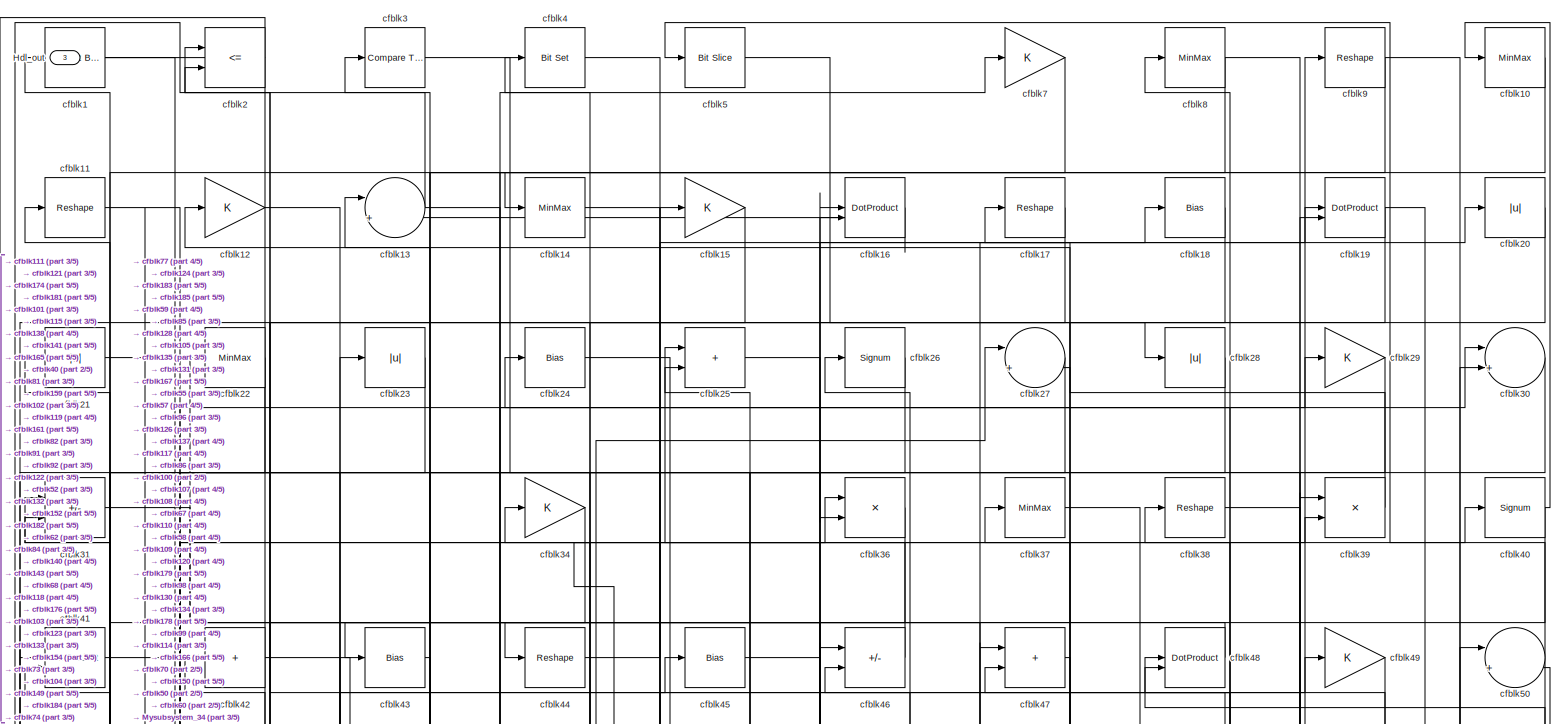
[diagram: root canvas - part 1/5, full width, top band]
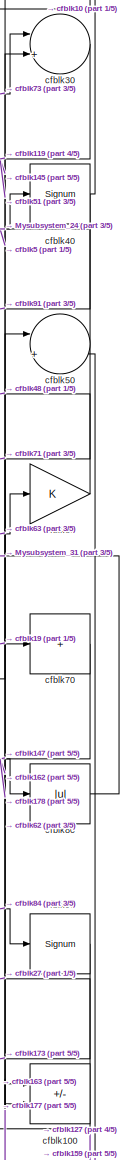
[diagram: root canvas - part 2/5, top right region]
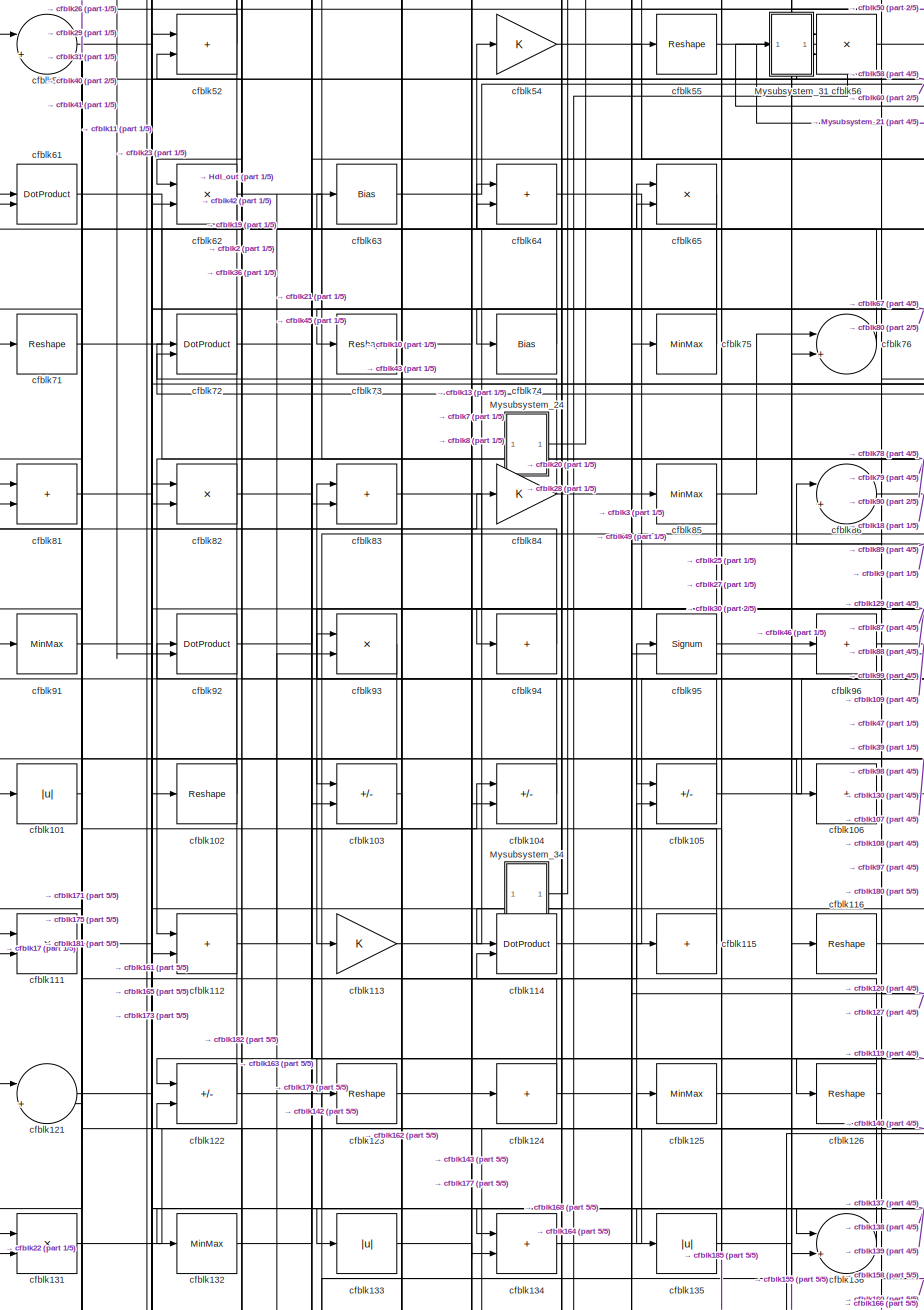
[diagram: root canvas - part 3/5, middle left region]
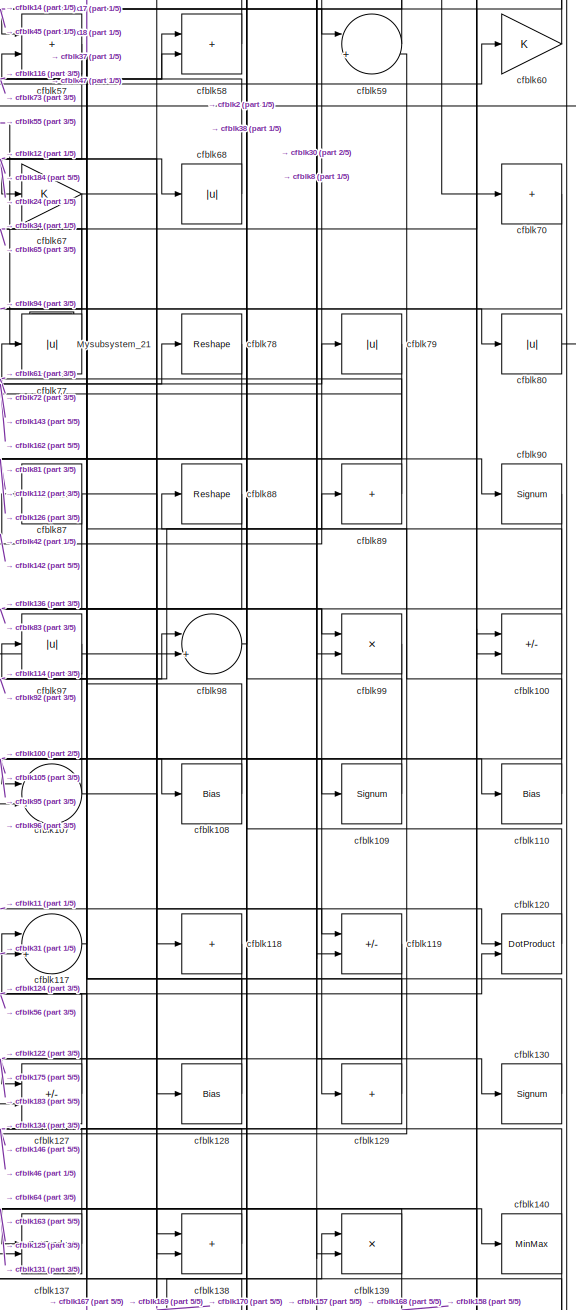
[diagram: root canvas - part 4/5, middle right region]
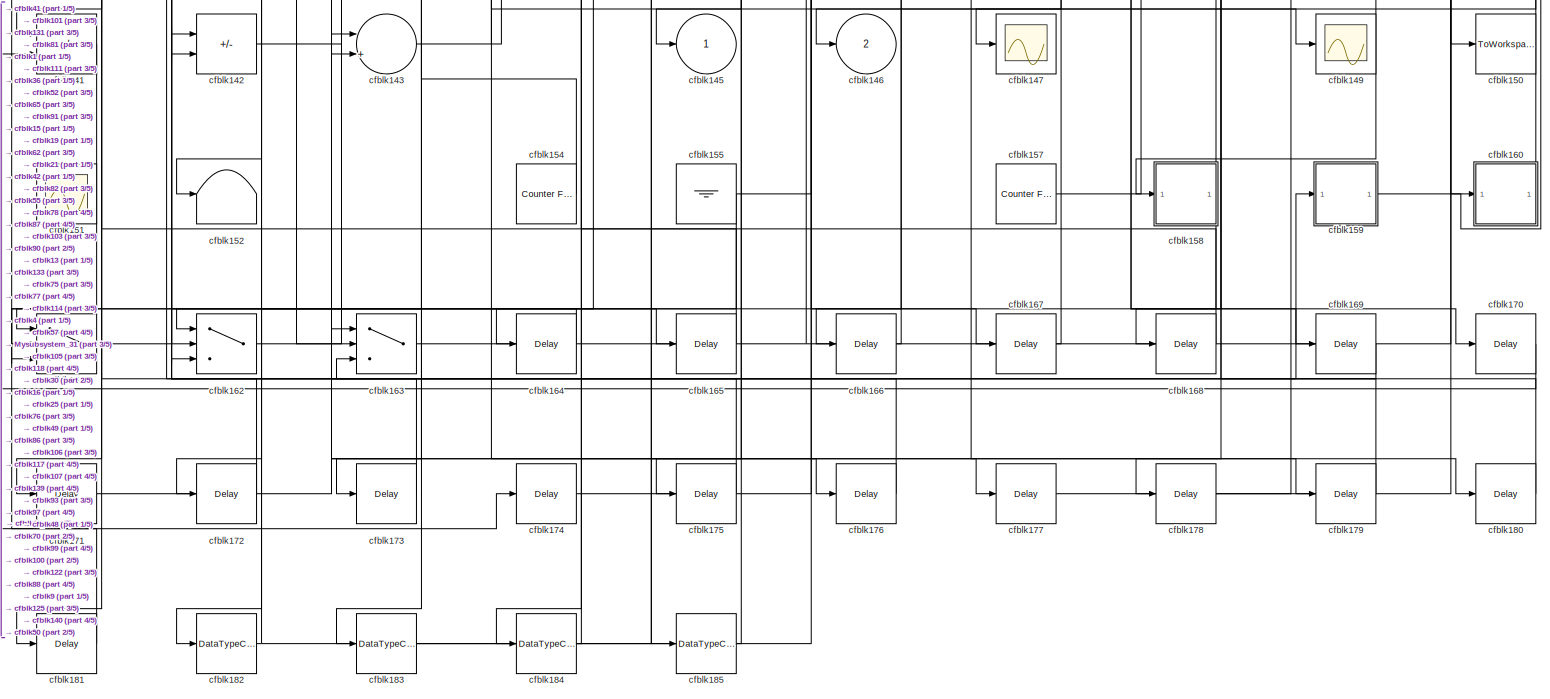
[diagram: root canvas - part 5/5, full width, bottom band]
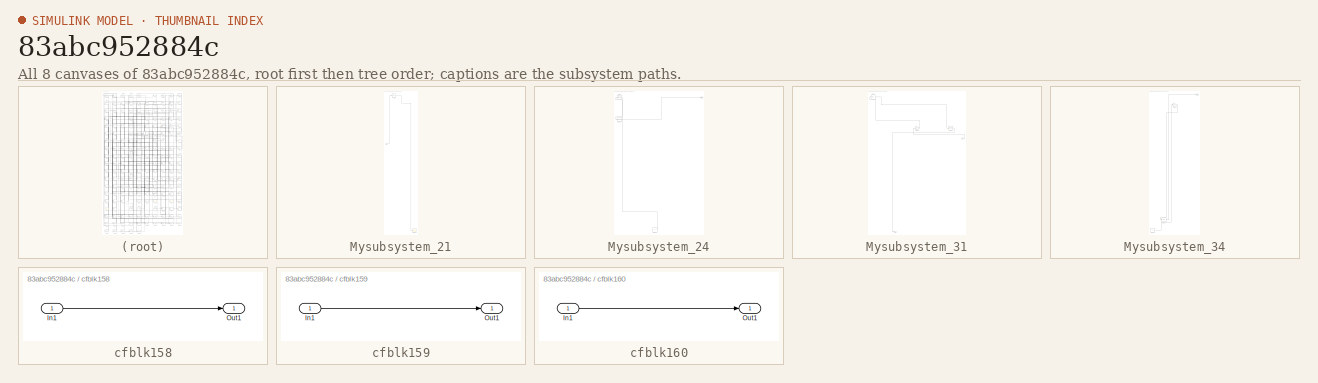
[diagram: thumbnail index - all 8 canvases of the model, root first then tree order]
MODEL slx_83abc952884c
KIND model
CONFIG AbsTol = auto
CONFIG EnableMultiTasking = off
CONFIG FixedStep = auto
CONFIG MaxStep = auto
CONFIG MinStep = auto
CONFIG RelTol = 1e-3
CONFIG SampleTimeConstraint = Unconstrained
CONFIG SolverName = VariableStepAuto
CONFIG StartTime = 0.0
CONFIG StopTime = 10.0
BLOCK [Outport] Hdl_out
  OutDataTypeStr = uint8
  Port = 3
BLOCK [SubSystem] Mysubsystem_21
  RTWFcnName = Mysubsystem_21
  RTWFcnNameOpts = User specified
  RTWFileNameOpts = Use function name
  RTWSystemCode = Reusable function
  TreatAsAtomicUnit = on
BLOCK [Inport] Mysubsystem_21/In1
BLOCK [Scope] Mysubsystem_21/cfblk148
  Floating = off
  NumInputPorts = 1
  ScopeSpecificationString = Simulink.scopes.TimeScopeBlockCfg('CurrentConfiguration', extmgr.ConfigurationSet(extmgr.Configuration('Core','General UI',true),extmgr.Configuration('Core','Source UI',true),extmgr.Configuration('Sources','WiredSimulink',true,'DataLoggingVariableName','ScopeData2','DataLoggingSaveFormat','Array','DataLoggingLimitDataPoints',true,'DataLoggingDecimation','1'),extmgr.Configuration('Visuals','Time Do...<+868ch>  <repeated x3 — deduplicated; at blocks: cfblk148, cfblk147, cfblk149>
BLOCK [Abs] Mysubsystem_21/cfblk6
  SaturateOnIntegerOverflow = off
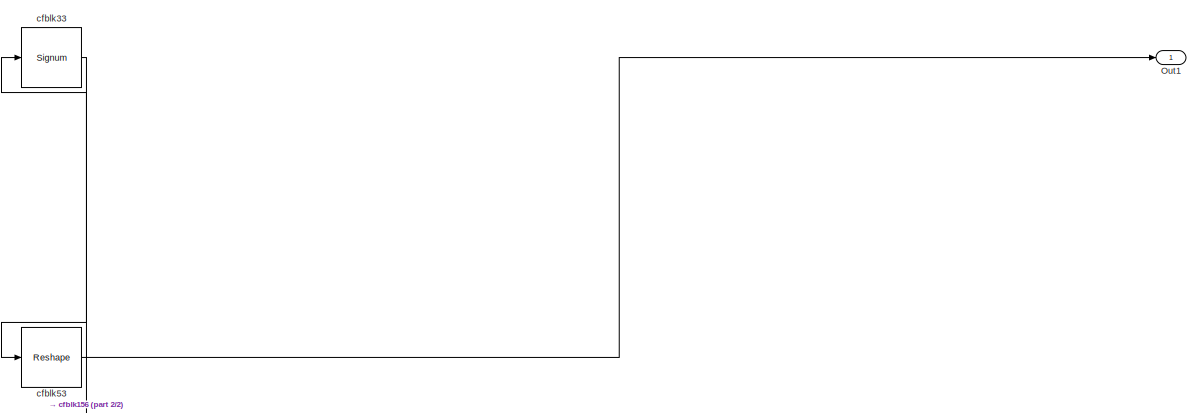
[diagram: Mysubsystem_24 - part 1/2, full width, top band]
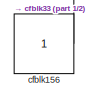
[diagram: Mysubsystem_24 - part 2/2, bottom center region]
BLOCK [SubSystem] Mysubsystem_24
  RTWFcnName = Mysubsystem_24
  RTWFcnNameOpts = User specified
  RTWFileNameOpts = Use function name
  RTWSystemCode = Reusable function
  TreatAsAtomicUnit = on
BLOCK [Outport] Mysubsystem_24/Out1
BLOCK [Constant] Mysubsystem_24/cfblk156
  SampleTime = -1
BLOCK [Signum] Mysubsystem_24/cfblk33
BLOCK [Reshape] Mysubsystem_24/cfblk53
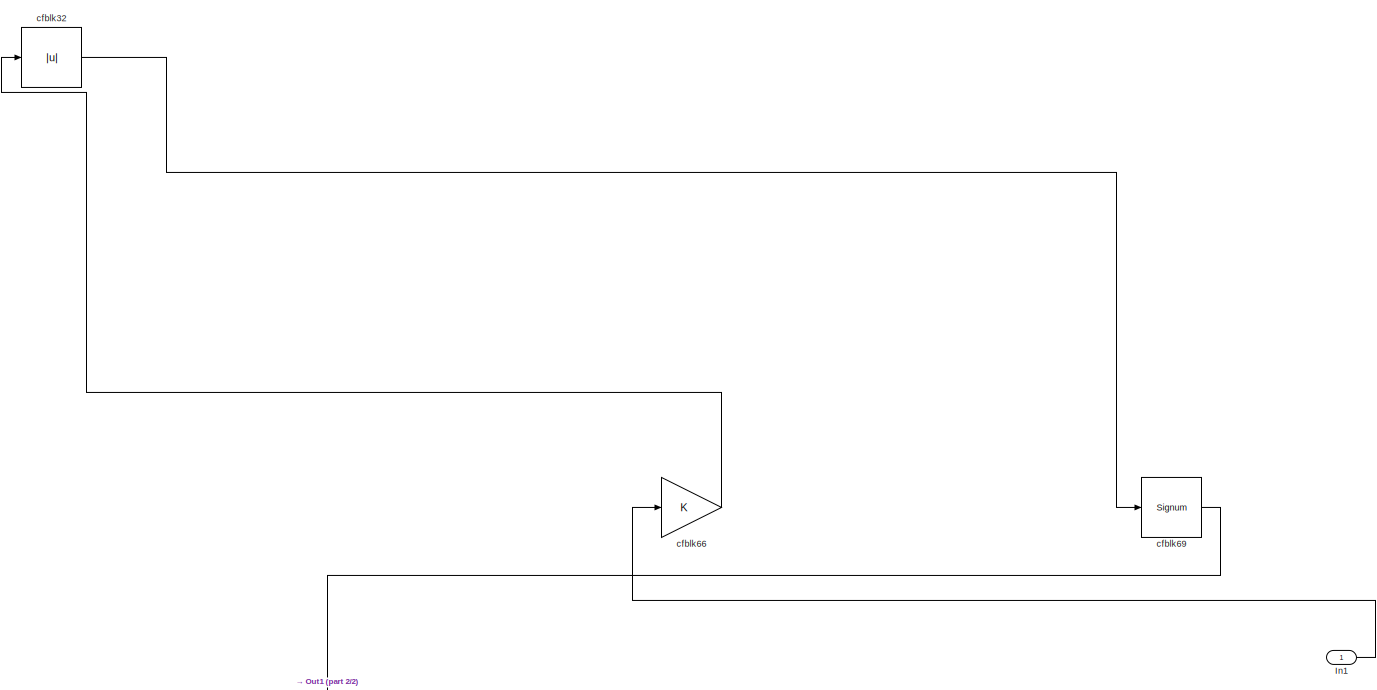
[diagram: Mysubsystem_31 - part 1/2, full width, top band]
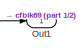
[diagram: Mysubsystem_31 - part 2/2, bottom left region]
BLOCK [SubSystem] Mysubsystem_31
  RTWFcnName = Mysubsystem_31
  RTWFcnNameOpts = User specified
  RTWFileNameOpts = Use function name
  RTWSystemCode = Reusable function
  TreatAsAtomicUnit = on
BLOCK [Inport] Mysubsystem_31/In1
BLOCK [Outport] Mysubsystem_31/Out1
BLOCK [Abs] Mysubsystem_31/cfblk32
  SaturateOnIntegerOverflow = off
BLOCK [Gain] Mysubsystem_31/cfblk66
BLOCK [Signum] Mysubsystem_31/cfblk69
BLOCK [SubSystem] Mysubsystem_34
  RTWFcnName = Mysubsystem_34
  RTWFcnNameOpts = User specified
  RTWFileNameOpts = Use function name
  RTWSystemCode = Reusable function
  TreatAsAtomicUnit = on
BLOCK [Outport] Mysubsystem_34/Out1
BLOCK [Bias] Mysubsystem_34/cfblk144
  Bias = 0.0
  SaturateOnIntegerOverflow = off
BLOCK [Constant] Mysubsystem_34/cfblk153
  SampleTime = -1
BLOCK [Gain] Mysubsystem_34/cfblk35
BLOCK [Reference] cfblk1  REF=simulink/Logic and Bit
Operations/Extract Bits
  LibrarySourceBlock = hdlsllib/Logic and Bit\nOperations/Extract Bits
  SourceBlock = simulink/Logic and Bit\nOperations/Extract Bits
  SourceType = Extract Bits
BLOCK [MinMax] cfblk10
  OutDataTypeStr = uint8
BLOCK [Sum] cfblk100
  IconShape = rectangular
  Inputs = +-
  OutDataTypeStr = uint8
BLOCK [Abs] cfblk101
  OutDataTypeStr = uint8
  SaturateOnIntegerOverflow = off
BLOCK [Reshape] cfblk102
BLOCK [Sum] cfblk103
  IconShape = rectangular
  Inputs = +-
  OutDataTypeStr = uint8
BLOCK [Sum] cfblk104
  IconShape = rectangular
  Inputs = +-
  OutDataTypeStr = uint8
BLOCK [Sum] cfblk105
  IconShape = rectangular
  Inputs = +-
  OutDataTypeStr = uint8
BLOCK [Sum] cfblk106
  IconShape = rectangular
  Inputs = +
  OutDataTypeStr = uint8
BLOCK [Sum] cfblk107
  Inputs = |++
  OutDataTypeStr = uint8
BLOCK [Bias] cfblk108
  Bias = 0.0
  SaturateOnIntegerOverflow = off
BLOCK [Signum] cfblk109
BLOCK [Reshape] cfblk11
BLOCK [Bias] cfblk110
  Bias = 0.0
  SaturateOnIntegerOverflow = off
BLOCK [Product] cfblk111
  Inputs = */
  OutDataTypeStr = uint8
  RndMeth = Zero
  SaturateOnIntegerOverflow = on
BLOCK [Sum] cfblk112
  IconShape = rectangular
  OutDataTypeStr = uint8
BLOCK [Gain] cfblk113
  OutDataTypeStr = uint8
BLOCK [DotProduct] cfblk114
  OutDataTypeStr = uint8
BLOCK [Sum] cfblk115
  IconShape = rectangular
  Inputs = +
  OutDataTypeStr = uint8
BLOCK [Reshape] cfblk116
BLOCK [Sum] cfblk117
  Inputs = |++
  OutDataTypeStr = uint8
BLOCK [Sum] cfblk118
  IconShape = rectangular
  Inputs = +
  OutDataTypeStr = uint8
BLOCK [Sum] cfblk119
  IconShape = rectangular
  Inputs = +-
  OutDataTypeStr = uint8
BLOCK [Gain] cfblk12
  OutDataTypeStr = uint8
BLOCK [DotProduct] cfblk120
  OutDataTypeStr = uint8
BLOCK [Sum] cfblk121
  Inputs = |++
  OutDataTypeStr = uint8
BLOCK [Sum] cfblk122
  IconShape = rectangular
  Inputs = +-
  OutDataTypeStr = uint8
BLOCK [Reshape] cfblk123
BLOCK [Sum] cfblk124
  IconShape = rectangular
  Inputs = +
  OutDataTypeStr = uint8
BLOCK [MinMax] cfblk125
  OutDataTypeStr = uint8
BLOCK [Reshape] cfblk126
BLOCK [Sum] cfblk127
  IconShape = rectangular
  Inputs = +-
  OutDataTypeStr = uint8
BLOCK [Bias] cfblk128
  Bias = 0.0
  SaturateOnIntegerOverflow = off
BLOCK [Sum] cfblk129
  IconShape = rectangular
  Inputs = +
  OutDataTypeStr = uint8
BLOCK [Sum] cfblk13
  Inputs = |++
  OutDataTypeStr = uint8
BLOCK [Signum] cfblk130
BLOCK [Product] cfblk131
  Inputs = */
  OutDataTypeStr = uint8
  RndMeth = Zero
  SaturateOnIntegerOverflow = on
BLOCK [MinMax] cfblk132
  OutDataTypeStr = uint8
BLOCK [Abs] cfblk133
  OutDataTypeStr = uint8
  SaturateOnIntegerOverflow = off
BLOCK [Sum] cfblk134
  IconShape = rectangular
  OutDataTypeStr = uint8
BLOCK [Abs] cfblk135
  OutDataTypeStr = uint8
  SaturateOnIntegerOverflow = off
BLOCK [Sum] cfblk136
  Inputs = |++
  OutDataTypeStr = uint8
BLOCK [DotProduct] cfblk137
  OutDataTypeStr = uint8
BLOCK [Sum] cfblk138
  IconShape = rectangular
  OutDataTypeStr = uint8
BLOCK [Product] cfblk139
  Inputs = */
  OutDataTypeStr = uint8
  RndMeth = Zero
  SaturateOnIntegerOverflow = on
BLOCK [MinMax] cfblk14
  OutDataTypeStr = uint8
BLOCK [MinMax] cfblk140
  OutDataTypeStr = uint8
BLOCK [Sum] cfblk141
  IconShape = rectangular
  Inputs = +-
  OutDataTypeStr = uint8
BLOCK [Sum] cfblk142
  IconShape = rectangular
  Inputs = +-
  OutDataTypeStr = uint8
BLOCK [Sum] cfblk143
  Inputs = |++
  OutDataTypeStr = uint8
BLOCK [Outport] cfblk145
  OutDataTypeStr = uint8
  VectorParamsAs1DForOutWhenUnconnected = off
BLOCK [Outport] cfblk146
  OutDataTypeStr = uint8
  Port = 2
  VectorParamsAs1DForOutWhenUnconnected = off
BLOCK [Scope] cfblk147
  Floating = off
  NumInputPorts = 1
BLOCK [Scope] cfblk149
  Floating = off
  NumInputPorts = 1
BLOCK [Gain] cfblk15
  OutDataTypeStr = uint8
BLOCK [ToWorkspace] cfblk150
  MaxDataPoints = inf
  SampleTime = -1
  SaveFormat = Timeseries
  VariableName = simout
BLOCK [Scope] cfblk151
  Floating = on
  NumInputPorts = 1
  ScopeSpecificationString = Simulink.scopes.TimeScopeBlockCfg('CurrentConfiguration', extmgr.ConfigurationSet(extmgr.Configuration('Core','General UI',true,'FigureColor',[0.156862745098039 0.156862745098039 0.156862745098039]),extmgr.Configuration('Core','Source UI',true),extmgr.Configuration('Sources','WiredSimulink',true,'DataLoggingVariableName','ScopeData1','DataLoggingSaveFormat','StructureWithTime','DataLoggingLimitDat...<+2713ch>
BLOCK [Terminator] cfblk152
BLOCK [Reference] cfblk154  REF=hdlsllib/Sources/Counter
Free-Running
  SourceBlock = hdlsllib/Sources/Counter\nFree-Running
  SourceType = Counter Free-Running
BLOCK [Ground] cfblk155
BLOCK [Reference] cfblk157  REF=hdlsllib/Sources/Counter
Free-Running
  SourceBlock = hdlsllib/Sources/Counter\nFree-Running
  SourceType = Counter Free-Running
BLOCK [SubSystem] cfblk158
  LibrarySourceBlock = hdlsllib/Ports &\nSubsystems/Subsystem
BLOCK [Inport] cfblk158/In1
BLOCK [Outport] cfblk158/Out1
BLOCK [SubSystem] cfblk159
  LibrarySourceBlock = hdlsllib/Ports &\nSubsystems/Subsystem
BLOCK [Inport] cfblk159/In1
BLOCK [Outport] cfblk159/Out1
BLOCK [DotProduct] cfblk16
  OutDataTypeStr = uint8
BLOCK [SubSystem] cfblk160
  LibrarySourceBlock = hdlsllib/Ports &\nSubsystems/Subsystem
BLOCK [Inport] cfblk160/In1
BLOCK [Outport] cfblk160/Out1
BLOCK [Switch] cfblk161
  InputSameDT = off
  OutDataTypeStr = uint8
  SaturateOnIntegerOverflow = off
BLOCK [Switch] cfblk162
  InputSameDT = off
  OutDataTypeStr = uint8
  SaturateOnIntegerOverflow = off
BLOCK [Switch] cfblk163
  InputSameDT = off
  OutDataTypeStr = uint8
  SaturateOnIntegerOverflow = off
BLOCK [Delay] cfblk164
  InputPortMap = u0
  SampleTime = 1
BLOCK [Delay] cfblk165
  InputPortMap = u0
  SampleTime = 1
BLOCK [Delay] cfblk166
  InputPortMap = u0
  SampleTime = 1
BLOCK [Delay] cfblk167
  InputPortMap = u0
  SampleTime = 1
BLOCK [Delay] cfblk168
  InputPortMap = u0
  SampleTime = 1
BLOCK [Delay] cfblk169
  InputPortMap = u0
  SampleTime = 1
BLOCK [Reshape] cfblk17
BLOCK [Delay] cfblk170
  InputPortMap = u0
  SampleTime = 1
BLOCK [Delay] cfblk171
  InputPortMap = u0
  SampleTime = 1
BLOCK [Delay] cfblk172
  InputPortMap = u0
  SampleTime = 1
BLOCK [Delay] cfblk173
  InputPortMap = u0
  SampleTime = 1
BLOCK [Delay] cfblk174
  InputPortMap = u0
  SampleTime = 1
BLOCK [Delay] cfblk175
  InputPortMap = u0
  SampleTime = 1
BLOCK [Delay] cfblk176
  InputPortMap = u0
  SampleTime = 1
BLOCK [Delay] cfblk177
  InputPortMap = u0
  SampleTime = 1
BLOCK [Delay] cfblk178
  InputPortMap = u0
  SampleTime = 1
BLOCK [Delay] cfblk179
  InputPortMap = u0
  SampleTime = 1
BLOCK [Bias] cfblk18
  Bias = 0.0
  SaturateOnIntegerOverflow = off
BLOCK [Delay] cfblk180
  InputPortMap = u0
  SampleTime = 1
BLOCK [Delay] cfblk181
  InputPortMap = u0
  SampleTime = 1
BLOCK [DataTypeConversion] cfblk182
  OutDataTypeStr = uint8
  RndMeth = Floor
  SaturateOnIntegerOverflow = off
BLOCK [DataTypeConversion] cfblk183
  OutDataTypeStr = uint8
  RndMeth = Floor
  SaturateOnIntegerOverflow = off
BLOCK [DataTypeConversion] cfblk184
  OutDataTypeStr = uint8
  RndMeth = Floor
  SaturateOnIntegerOverflow = off
BLOCK [DataTypeConversion] cfblk185
  OutDataTypeStr = uint8
  RndMeth = Floor
  SaturateOnIntegerOverflow = off
BLOCK [DotProduct] cfblk19
  OutDataTypeStr = uint8
BLOCK [RelationalOperator] cfblk2
  InputSameDT = off
  Operator = <=
  OutDataTypeStr = boolean
BLOCK [Abs] cfblk20
  OutDataTypeStr = uint8
  SaturateOnIntegerOverflow = off
BLOCK [Abs] cfblk21
  OutDataTypeStr = uint8
  SaturateOnIntegerOverflow = off
BLOCK [MinMax] cfblk22
  OutDataTypeStr = uint8
BLOCK [Abs] cfblk23
  OutDataTypeStr = uint8
  SaturateOnIntegerOverflow = off
BLOCK [Bias] cfblk24
  Bias = 0.0
  SaturateOnIntegerOverflow = off
BLOCK [Sum] cfblk25
  IconShape = rectangular
  OutDataTypeStr = uint8
BLOCK [Signum] cfblk26
BLOCK [Sum] cfblk27
  Inputs = |++
  OutDataTypeStr = uint8
BLOCK [Abs] cfblk28
  OutDataTypeStr = uint8
  SaturateOnIntegerOverflow = off
BLOCK [Gain] cfblk29
  OutDataTypeStr = uint8
BLOCK [Reference] cfblk3  REF=hdlsllib/Logic and Bit
Operations/Compare
To Zero
  SourceBlock = hdlsllib/Logic and Bit\nOperations/Compare\nTo Zero
  SourceType = Compare To Zero
BLOCK [Sum] cfblk30
  Inputs = |++
  OutDataTypeStr = uint8
BLOCK [Sum] cfblk31
  IconShape = rectangular
  Inputs = +-
  OutDataTypeStr = uint8
BLOCK [Gain] cfblk34
  OutDataTypeStr = uint8
BLOCK [Product] cfblk36
  Inputs = */
  OutDataTypeStr = uint8
  RndMeth = Zero
  SaturateOnIntegerOverflow = on
BLOCK [MinMax] cfblk37
  OutDataTypeStr = uint8
BLOCK [Reshape] cfblk38
BLOCK [Product] cfblk39
  Inputs = */
  OutDataTypeStr = uint8
  RndMeth = Zero
  SaturateOnIntegerOverflow = on
BLOCK [Reference] cfblk4  REF=simulink/Logic and Bit
Operations/Bit Set
  LibrarySourceBlock = hdlsllib/Logic and Bit\nOperations/Bit Set
  SourceBlock = simulink/Logic and Bit\nOperations/Bit Set
  SourceType = Bit Set
BLOCK [Signum] cfblk40
BLOCK [DotProduct] cfblk41
  OutDataTypeStr = uint8
BLOCK [Sum] cfblk42
  IconShape = rectangular
  Inputs = +
  OutDataTypeStr = uint8
BLOCK [Bias] cfblk43
  Bias = 0.0
  SaturateOnIntegerOverflow = off
BLOCK [Reshape] cfblk44
BLOCK [Bias] cfblk45
  Bias = 0.0
  SaturateOnIntegerOverflow = off
BLOCK [Sum] cfblk46
  IconShape = rectangular
  Inputs = +-
  OutDataTypeStr = uint8
BLOCK [Sum] cfblk47
  IconShape = rectangular
  OutDataTypeStr = uint8
BLOCK [DotProduct] cfblk48
  OutDataTypeStr = uint8
BLOCK [Gain] cfblk49
  OutDataTypeStr = uint8
BLOCK [Reference] cfblk5  REF=hdlsllib/Logic and Bit
Operations/Bit Slice
  SourceBlock = hdlsllib/Logic and Bit\nOperations/Bit Slice
  SourceType = Bit Slice
BLOCK [Sum] cfblk50
  Inputs = |++
  OutDataTypeStr = uint8
BLOCK [Sum] cfblk51
  Inputs = |++
  OutDataTypeStr = uint8
BLOCK [Sum] cfblk52
  IconShape = rectangular
  OutDataTypeStr = uint8
BLOCK [Gain] cfblk54
  OutDataTypeStr = uint8
BLOCK [Reshape] cfblk55
BLOCK [Product] cfblk56
  Inputs = */
  OutDataTypeStr = uint8
  RndMeth = Zero
  SaturateOnIntegerOverflow = on
BLOCK [Sum] cfblk57
  IconShape = rectangular
  OutDataTypeStr = uint8
BLOCK [Sum] cfblk58
  IconShape = rectangular
  OutDataTypeStr = uint8
BLOCK [Sum] cfblk59
  Inputs = |++
  OutDataTypeStr = uint8
BLOCK [Gain] cfblk60
  OutDataTypeStr = uint8
BLOCK [DotProduct] cfblk61
  OutDataTypeStr = uint8
BLOCK [Product] cfblk62
  Inputs = */
  OutDataTypeStr = uint8
  RndMeth = Zero
  SaturateOnIntegerOverflow = on
BLOCK [Bias] cfblk63
  Bias = 0.0
  SaturateOnIntegerOverflow = off
BLOCK [Sum] cfblk64
  IconShape = rectangular
  OutDataTypeStr = uint8
BLOCK [Product] cfblk65
  Inputs = */
  OutDataTypeStr = uint8
  RndMeth = Zero
  SaturateOnIntegerOverflow = on
BLOCK [Gain] cfblk67
  OutDataTypeStr = uint8
BLOCK [Abs] cfblk68
  OutDataTypeStr = uint8
  SaturateOnIntegerOverflow = off
BLOCK [Gain] cfblk7
  OutDataTypeStr = uint8
BLOCK [Sum] cfblk70
  IconShape = rectangular
  Inputs = +
  OutDataTypeStr = uint8
BLOCK [Reshape] cfblk71
BLOCK [DotProduct] cfblk72
  OutDataTypeStr = uint8
BLOCK [Reshape] cfblk73
BLOCK [Bias] cfblk74
  Bias = 0.0
  SaturateOnIntegerOverflow = off
BLOCK [MinMax] cfblk75
  OutDataTypeStr = uint8
BLOCK [Sum] cfblk76
  Inputs = |++
  OutDataTypeStr = uint8
BLOCK [Abs] cfblk77
  OutDataTypeStr = uint8
  SaturateOnIntegerOverflow = off
BLOCK [Reshape] cfblk78
BLOCK [Abs] cfblk79
  OutDataTypeStr = uint8
  SaturateOnIntegerOverflow = off
BLOCK [MinMax] cfblk8
  OutDataTypeStr = uint8
BLOCK [Abs] cfblk80
  OutDataTypeStr = uint8
  SaturateOnIntegerOverflow = off
BLOCK [Sum] cfblk81
  IconShape = rectangular
  OutDataTypeStr = uint8
BLOCK [Product] cfblk82
  Inputs = */
  OutDataTypeStr = uint8
  RndMeth = Zero
  SaturateOnIntegerOverflow = on
BLOCK [Sum] cfblk83
  IconShape = rectangular
  OutDataTypeStr = uint8
BLOCK [Gain] cfblk84
  OutDataTypeStr = uint8
BLOCK [MinMax] cfblk85
  OutDataTypeStr = uint8
BLOCK [Sum] cfblk86
  Inputs = |++
  OutDataTypeStr = uint8
BLOCK [MinMax] cfblk87
  OutDataTypeStr = uint8
BLOCK [Reshape] cfblk88
BLOCK [Sum] cfblk89
  IconShape = rectangular
  Inputs = +
  OutDataTypeStr = uint8
BLOCK [Reshape] cfblk9
BLOCK [Signum] cfblk90
BLOCK [MinMax] cfblk91
  OutDataTypeStr = uint8
BLOCK [DotProduct] cfblk92
  OutDataTypeStr = uint8
BLOCK [Product] cfblk93
  Inputs = */
  OutDataTypeStr = uint8
  RndMeth = Zero
  SaturateOnIntegerOverflow = on
BLOCK [Sum] cfblk94
  IconShape = rectangular
  Inputs = +
  OutDataTypeStr = uint8
BLOCK [Signum] cfblk95
BLOCK [Sum] cfblk96
  IconShape = rectangular
  Inputs = +
  OutDataTypeStr = uint8
BLOCK [Abs] cfblk97
  OutDataTypeStr = uint8
  SaturateOnIntegerOverflow = off
BLOCK [Sum] cfblk98
  Inputs = |++
  OutDataTypeStr = uint8
BLOCK [Product] cfblk99
  Inputs = */
  OutDataTypeStr = uint8
  RndMeth = Zero
  SaturateOnIntegerOverflow = on
LINE Mysubsystem_21/In1:1 -> Mysubsystem_21/cfblk6:1
LINE Mysubsystem_21/cfblk6:1 -> Mysubsystem_21/cfblk148:1
LINE Mysubsystem_24/cfblk156:1 -> Mysubsystem_24/cfblk33:1
LINE Mysubsystem_24/cfblk33:1 -> Mysubsystem_24/cfblk53:1
LINE Mysubsystem_24/cfblk53:1 -> Mysubsystem_24/Out1:1
LINE Mysubsystem_24:1 -> cfblk40:1
LINE Mysubsystem_31/In1:1 -> Mysubsystem_31/cfblk66:1
LINE Mysubsystem_31/cfblk32:1 -> Mysubsystem_31/cfblk69:1
LINE Mysubsystem_31/cfblk66:1 -> Mysubsystem_31/cfblk32:1
LINE Mysubsystem_31/cfblk69:1 -> Mysubsystem_31/Out1:1
LINE Mysubsystem_31:1 -> cfblk164:1
LINE Mysubsystem_34/cfblk144:1 -> Mysubsystem_34/Out1:1
LINE Mysubsystem_34/cfblk153:1 -> Mysubsystem_34/cfblk35:1
LINE Mysubsystem_34/cfblk35:1 -> Mysubsystem_34/cfblk144:1
LINE Mysubsystem_34:1 -> cfblk27:1
NET cfblk100:1 -> cfblk127:2, cfblk27:2
LINE cfblk101:1 -> cfblk181:1
LINE cfblk102:1 -> cfblk51:1
LINE cfblk103:1 -> cfblk162:1
LINE cfblk104:1 -> cfblk83:1
NET cfblk105:1 -> cfblk25:2, cfblk72:2, cfblk98:1
LINE cfblk106:1 -> cfblk180:1
NET cfblk107:1 -> cfblk105:1, cfblk169:1
LINE cfblk108:1 -> cfblk17:1
LINE cfblk109:1 -> cfblk24:1
LINE cfblk10:1 -> cfblk73:1
LINE cfblk110:1 -> cfblk59:2
LINE cfblk111:1 -> cfblk165:1
NET cfblk112:1 -> cfblk127:1, cfblk93:2
LINE cfblk113:1 -> cfblk65:1
NET cfblk114:1 -> cfblk89:1, cfblk9:1
LINE cfblk115:1 -> cfblk21:1
NET cfblk116:1 -> cfblk58:1, cfblk86:2
LINE cfblk117:1 -> cfblk57:2
NET cfblk118:1 -> cfblk175:1, cfblk183:1
LINE cfblk119:1 -> cfblk122:1
NET cfblk11:1 -> cfblk102:1, cfblk119:1, cfblk22:1, cfblk36:2, cfblk92:2
LINE cfblk120:1 -> cfblk8:1
NET cfblk121:1 -> cfblk56:2, cfblk84:1
NET cfblk122:1 -> Hdl_out:1, cfblk160:1
LINE cfblk123:1 -> cfblk7:1
NET cfblk124:1 -> cfblk120:2, cfblk31:2, cfblk49:1, cfblk64:1
LINE cfblk125:1 -> cfblk139:2
NET cfblk126:1 -> cfblk134:1, cfblk26:1, cfblk3:1
LINE cfblk127:1 -> cfblk56:1
LINE cfblk128:1 -> cfblk37:1
LINE cfblk129:1 -> cfblk65:2
NET cfblk12:1 -> cfblk140:1, cfblk68:1
LINE cfblk130:1 -> cfblk92:1
NET cfblk131:1 -> cfblk138:2, cfblk171:1, cfblk46:1
NET cfblk132:1 -> cfblk104:1, cfblk115:1
LINE cfblk133:1 -> cfblk177:1
NET cfblk134:1 -> cfblk39:1, cfblk98:2
LINE cfblk135:1 -> cfblk116:1
LINE cfblk136:1 -> cfblk95:1
LINE cfblk137:1 -> cfblk46:2
LINE cfblk138:1 -> cfblk31:1
NET cfblk139:1 -> cfblk137:1, cfblk158:1
NET cfblk13:1 -> cfblk121:1, cfblk149:1
NET cfblk140:1 -> cfblk146:1, cfblk64:2
LINE cfblk141:1 -> cfblk161:1
NET cfblk142:1 -> cfblk55:1, cfblk87:1
NET cfblk143:1 -> cfblk75:1, cfblk77:1
LINE cfblk14:1 -> cfblk59:1
LINE cfblk154:1 -> cfblk13:1
NET cfblk155:1 -> cfblk161:3, cfblk76:2
LINE cfblk157:1 -> cfblk139:1
LINE cfblk158/In1:1 -> cfblk158/Out1:1
NET cfblk158:1 -> cfblk172:1, cfblk93:1, cfblk97:1
LINE cfblk159/In1:1 -> cfblk159/Out1:1
LINE cfblk159:1 -> cfblk50:2
LINE cfblk15:1 -> cfblk182:1
LINE cfblk160/In1:1 -> cfblk160/Out1:1
LINE cfblk160:1 -> cfblk125:1
NET cfblk161:1 -> cfblk36:1, cfblk62:2
LINE cfblk162:1 -> cfblk78:1
NET cfblk163:1 -> cfblk100:1, cfblk88:1
LINE cfblk164:1 -> cfblk161:2
LINE cfblk165:1 -> cfblk1:1
LINE cfblk166:1 -> cfblk86:1
LINE cfblk167:1 -> cfblk117:1
LINE cfblk168:1 -> cfblk114:2
LINE cfblk169:1 -> cfblk163:3
LINE cfblk16:1 -> cfblk13:2
LINE cfblk170:1 -> cfblk141:2
LINE cfblk171:1 -> cfblk143:2
LINE cfblk172:1 -> cfblk142:1
LINE cfblk173:1 -> cfblk52:1
LINE cfblk174:1 -> cfblk16:1
LINE cfblk175:1 -> cfblk81:2
LINE cfblk176:1 -> cfblk163:1
LINE cfblk177:1 -> cfblk50:1
LINE cfblk178:1 -> cfblk19:2
LINE cfblk179:1 -> cfblk48:2
LINE cfblk17:1 -> cfblk111:2
LINE cfblk180:1 -> cfblk82:1
LINE cfblk181:1 -> cfblk41:1
NET cfblk182:1 -> cfblk122:2, cfblk16:2
LINE cfblk183:1 -> cfblk15:1
LINE cfblk184:1 -> cfblk4:1
LINE cfblk185:1 -> cfblk105:2
LINE cfblk18:1 -> cfblk67:1
NET cfblk19:1 -> cfblk132:1, cfblk152:1, cfblk70:1
LINE cfblk1:1 -> cfblk159:1
LINE cfblk20:1 -> cfblk114:1
NET cfblk21:1 -> cfblk143:1, cfblk96:1
LINE cfblk22:1 -> cfblk131:2
LINE cfblk23:1 -> cfblk82:2
LINE cfblk24:1 -> cfblk128:1
LINE cfblk25:1 -> cfblk167:1
LINE cfblk26:1 -> cfblk101:1
LINE cfblk27:1 -> cfblk135:1
NET cfblk28:1 -> cfblk123:1, cfblk74:1
LINE cfblk29:1 -> cfblk81:1
LINE cfblk2:1 -> cfblk174:1
NET cfblk30:1 -> cfblk119:2, cfblk145:1, cfblk51:2
LINE cfblk31:1 -> cfblk117:2
LINE cfblk34:1 -> cfblk43:1
LINE cfblk36:1 -> cfblk62:1
LINE cfblk37:1 -> cfblk110:1
LINE cfblk38:1 -> cfblk99:2
LINE cfblk39:1 -> cfblk12:1
LINE cfblk3:1 -> cfblk85:1
NET cfblk40:1 -> cfblk10:1, cfblk91:1
LINE cfblk41:1 -> cfblk29:1
NET cfblk42:1 -> cfblk118:1, cfblk176:1
LINE cfblk43:1 -> cfblk133:1
LINE cfblk44:1 -> cfblk20:1
LINE cfblk45:1 -> cfblk57:1
LINE cfblk46:1 -> cfblk25:1
LINE cfblk47:1 -> cfblk107:1
LINE cfblk48:1 -> cfblk44:1
LINE cfblk49:1 -> cfblk166:1
LINE cfblk4:1 -> cfblk185:1
NET cfblk50:1 -> cfblk100:2, cfblk5:1, cfblk71:1
NET cfblk51:1 -> cfblk103:2, cfblk121:2
LINE cfblk52:1 -> cfblk42:1
LINE cfblk54:1 -> cfblk136:2
NET cfblk55:1 -> Mysubsystem_21:1, cfblk19:1
LINE cfblk56:1 -> cfblk107:2
LINE cfblk57:1 -> cfblk184:1
LINE cfblk58:1 -> cfblk2:1
LINE cfblk59:1 -> cfblk47:2
LINE cfblk5:1 -> cfblk28:1
LINE cfblk60:1 -> cfblk48:1
LINE cfblk61:1 -> cfblk124:1
NET cfblk62:1 -> cfblk163:2, cfblk80:1
LINE cfblk63:1 -> cfblk60:1
LINE cfblk64:1 -> cfblk129:1
NET cfblk65:1 -> cfblk142:2, cfblk83:2
NET cfblk67:1 -> cfblk120:1, cfblk94:1
LINE cfblk68:1 -> cfblk11:1
NET cfblk70:1 -> cfblk147:1, cfblk162:3, cfblk178:1
LINE cfblk71:1 -> cfblk30:2
LINE cfblk72:1 -> cfblk99:1
NET cfblk73:1 -> cfblk30:1, cfblk58:2
LINE cfblk74:1 -> cfblk41:2
LINE cfblk75:1 -> cfblk52:2
LINE cfblk76:1 -> cfblk54:1
LINE cfblk77:1 -> cfblk34:1
LINE cfblk78:1 -> cfblk112:1
LINE cfblk79:1 -> cfblk126:1
NET cfblk7:1 -> cfblk103:1, cfblk14:1
LINE cfblk80:1 -> Mysubsystem_31:1
NET cfblk81:1 -> cfblk137:2, cfblk63:1, cfblk79:1
NET cfblk82:1 -> cfblk106:1, cfblk179:1, cfblk45:1
LINE cfblk83:1 -> cfblk138:1
NET cfblk84:1 -> cfblk2:2, cfblk90:1
NET cfblk85:1 -> cfblk113:1, cfblk134:2, cfblk76:1
LINE cfblk86:1 -> cfblk18:1
NET cfblk87:1 -> cfblk112:2, cfblk170:1
LINE cfblk88:1 -> cfblk136:1
NET cfblk89:1 -> cfblk61:1, cfblk72:1
NET cfblk8:1 -> cfblk104:2, cfblk130:1
LINE cfblk90:1 -> cfblk173:1
NET cfblk91:1 -> cfblk162:2, cfblk39:2
LINE cfblk92:1 -> cfblk23:1
LINE cfblk93:1 -> cfblk111:1
LINE cfblk94:1 -> cfblk61:2
LINE cfblk95:1 -> cfblk108:1
NET cfblk96:1 -> cfblk109:1, cfblk47:1
LINE cfblk97:1 -> cfblk131:1
LINE cfblk98:1 -> cfblk38:1
LINE cfblk99:1 -> cfblk168:1
NET cfblk9:1 -> cfblk141:1, cfblk150:1
note: NET lines group one-source signal fan-out (src -> all destinations, sorted); 1:1 wires keep LINE
